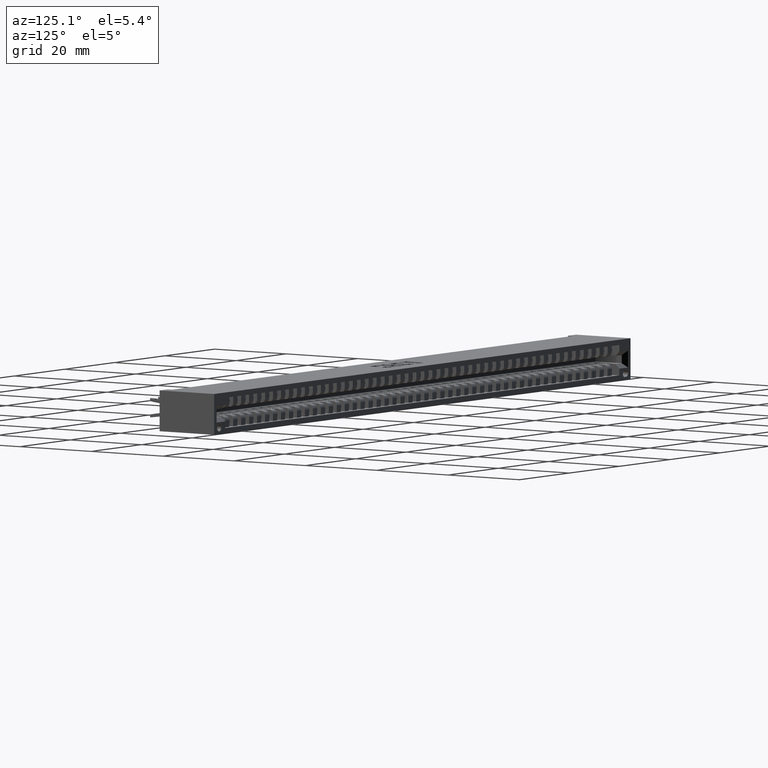
[diagram: clean part render]
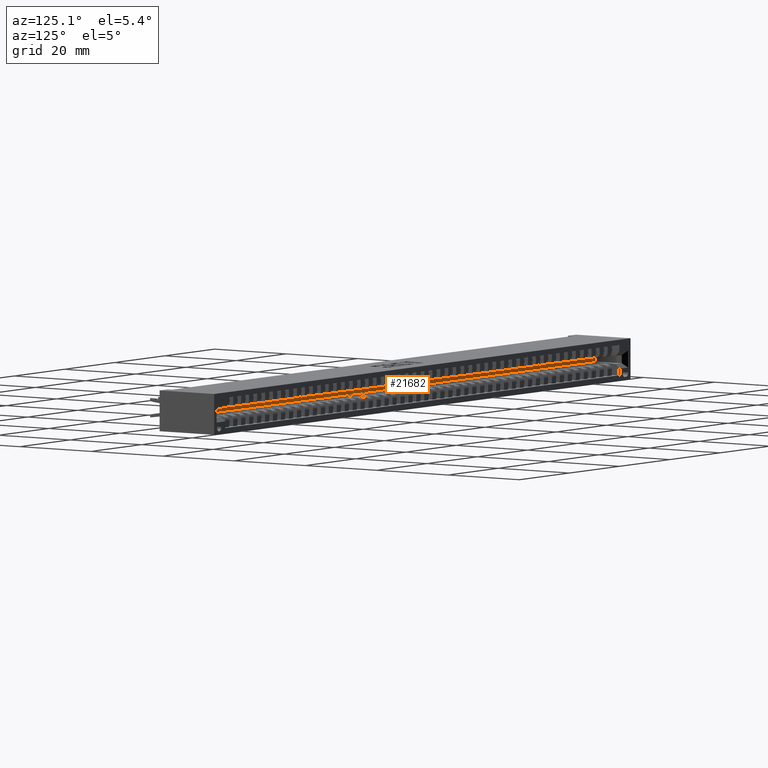
[diagram: same view with one face highlighted and labeled with its STEP entity id]
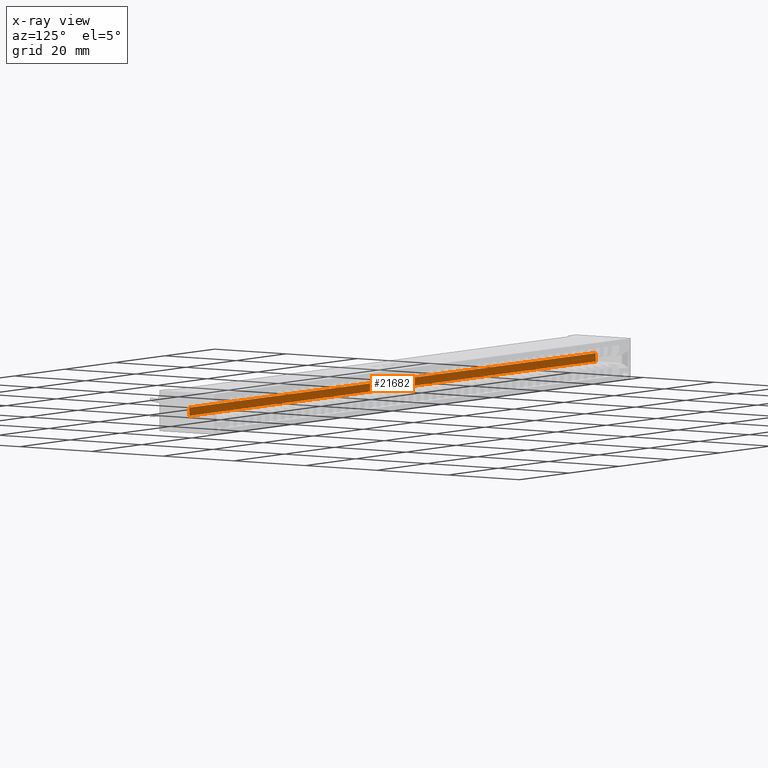
[diagram: x-ray of the same camera — body ghosted, the highlighted face saturated]
A machine part, auxiliary view. The second image highlights one B-rep face of the part: STEP entity #21682.
The next image is the same camera in x-ray: the body ghosted, the highlighted face saturated — about 0% of this face is hidden behind the body in this view.
In plain terms, the highlighted planar face has unit normal (0, 1, 0).
Its self-contained STEP definition (entity closure, byte-faithful):
#680 = CARTESIAN_POINT ( 'NONE',  ( 6.717500000000002000, 0.2699999999999999100, -0.2220000000000000900 ) ) ;
#710 = VECTOR ( 'NONE', #14962, 39.37007874015748100 ) ;
#2980 = DIRECTION ( 'NONE',  ( 0.0000000000000000000, 1.000000000000000000, 0.0000000000000000000 ) ) ;
#5165 = LINE ( 'NONE', #19957, #25456 ) ;
#5756 = AXIS2_PLACEMENT_3D ( 'NONE', #17663, #2980, #25027 ) ;
#5916 = DIRECTION ( 'NONE',  ( -0.0000000000000000000, -0.0000000000000000000, -1.000000000000000000 ) ) ;
#6238 = EDGE_CURVE ( 'NONE', #22058, #25268, #5165, .T. ) ;
#6715 = CARTESIAN_POINT ( 'NONE',  ( 6.717500000000002000, 0.2699999999999999100, -0.1480000000000000800 ) ) ;
#7213 = LINE ( 'NONE', #17224, #710 ) ;
#7989 = DIRECTION ( 'NONE',  ( 1.000000000000000000, 0.0000000000000000000, 0.0000000000000000000 ) ) ;
#8707 = DIRECTION ( 'NONE',  ( -1.000000000000000000, -0.0000000000000000000, -0.0000000000000000000 ) ) ;
#10166 = VECTOR ( 'NONE', #8707, 39.37007874015748100 ) ;
#10887 = EDGE_CURVE ( 'NONE', #25268, #16396, #21734, .T. ) ;
#11152 = EDGE_CURVE ( 'NONE', #29863, #22058, #7213, .T. ) ;
#11279 = ORIENTED_EDGE ( 'NONE', *, *, #12420, .T. ) ;
#11839 = VECTOR ( 'NONE', #5916, 39.37007874015748100 ) ;
#12420 = EDGE_CURVE ( 'NONE', #16396, #29863, #24382, .T. ) ;
#12811 = CARTESIAN_POINT ( 'NONE',  ( 0.3425000000000000300, 0.2699999999999999100, -0.2220000000000000900 ) ) ;
#13552 = CARTESIAN_POINT ( 'NONE',  ( 0.3425000000000000300, 0.2699999999999999100, -0.2220000000000000900 ) ) ;
#14962 = DIRECTION ( 'NONE',  ( 0.0000000000000000000, 0.0000000000000000000, 1.000000000000000000 ) ) ;
#16396 = VERTEX_POINT ( 'NONE', #20819 ) ;
#16475 = CARTESIAN_POINT ( 'NONE',  ( 0.3425000000000000300, 0.2699999999999999100, -0.1480000000000000800 ) ) ;
#17224 = CARTESIAN_POINT ( 'NONE',  ( 0.3425000000000000300, 0.2699999999999999100, -0.2220000000000000900 ) ) ;
#17663 = CARTESIAN_POINT ( 'NONE',  ( 0.3425000000000000300, 0.2699999999999999100, -0.1480000000000000800 ) ) ;
#19219 = FACE_OUTER_BOUND ( 'NONE', #21250, .T. ) ;
#19699 = ORIENTED_EDGE ( 'NONE', *, *, #6238, .T. ) ;
#19957 = CARTESIAN_POINT ( 'NONE',  ( 0.3425000000000000300, 0.2699999999999999100, -0.1480000000000000800 ) ) ;
#20819 = CARTESIAN_POINT ( 'NONE',  ( 6.717500000000002000, 0.2699999999999999100, -0.2220000000000000900 ) ) ;
#21250 = EDGE_LOOP ( 'NONE', ( #19699, #24569, #11279, #24612 ) ) ;
#21682 = ADVANCED_FACE ( 'NONE', ( #19219 ), #29929, .T. ) ;
#21734 = LINE ( 'NONE', #680, #11839 ) ;
#22058 = VERTEX_POINT ( 'NONE', #16475 ) ;
#24382 = LINE ( 'NONE', #12811, #10166 ) ;
#24569 = ORIENTED_EDGE ( 'NONE', *, *, #10887, .T. ) ;
#24612 = ORIENTED_EDGE ( 'NONE', *, *, #11152, .T. ) ;
#25027 = DIRECTION ( 'NONE',  ( 0.0000000000000000000, -0.0000000000000000000, 1.000000000000000000 ) ) ;
#25268 = VERTEX_POINT ( 'NONE', #6715 ) ;
#25456 = VECTOR ( 'NONE', #7989, 39.37007874015748100 ) ;
#29863 = VERTEX_POINT ( 'NONE', #13552 ) ;
#29929 = PLANE ( 'NONE',  #5756 ) ;